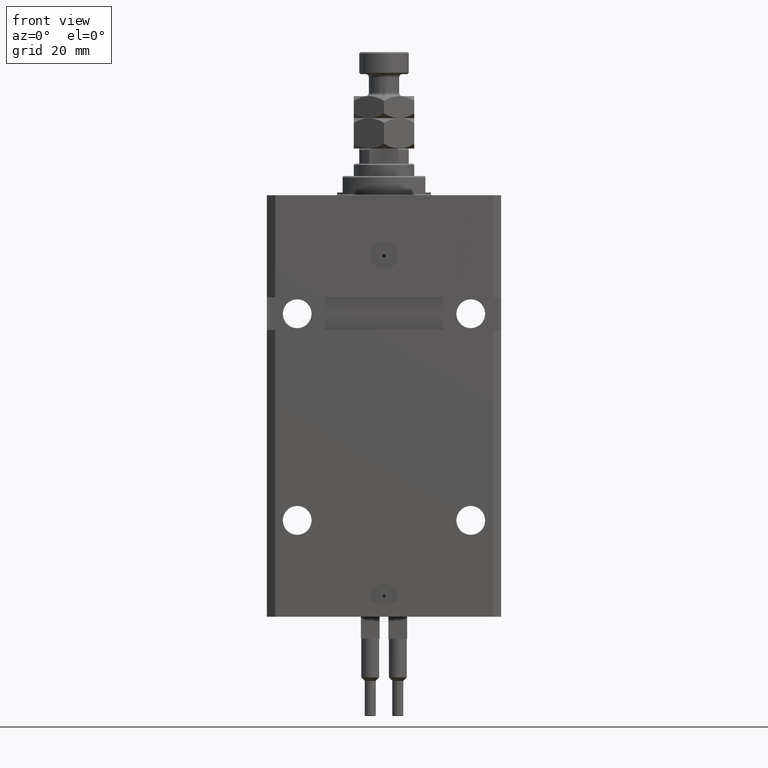
[diagram: clean part render]
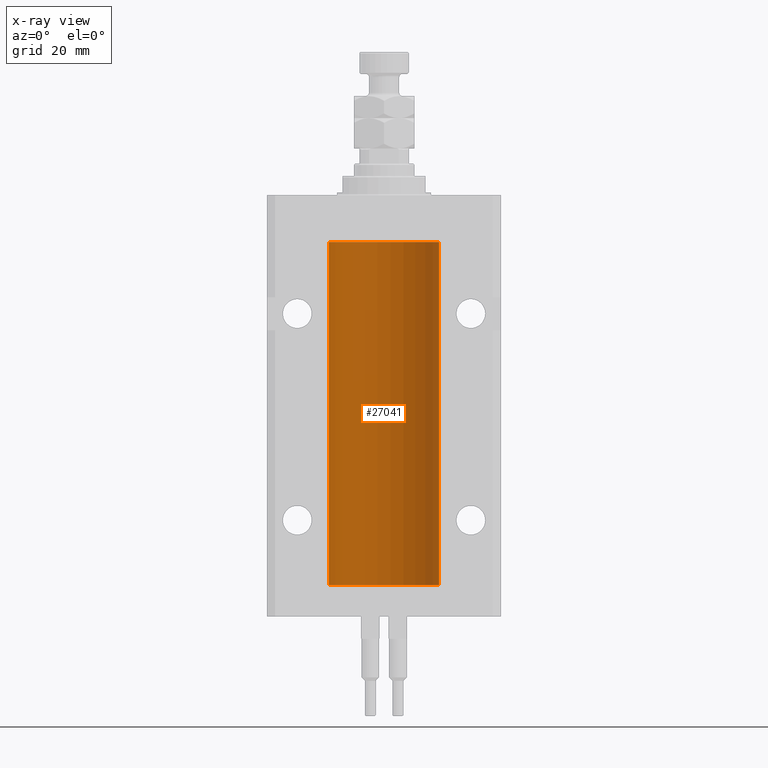
[diagram: x-ray — body ghosted, one internal face saturated and labeled with its STEP entity id]
A machine part, front view, then the same camera in x-ray: the body is ghosted and one INTERNAL B-rep face — a face not visible from any outside direction — is saturated and labeled: STEP entity #27041.
In plain terms, the highlighted cylindrical surface (partial cylindrical patch) has radius 20 mm, axis along (0, 0, 1).
Its self-contained STEP definition (entity closure, byte-faithful):
#698 = FACE_OUTER_BOUND ( 'NONE', #46947, .T. ) ;
#1222 = CARTESIAN_POINT ( 'NONE',  ( -19.99253506710755346, 0.5587120480776690545, -139.3251162083025463 ) ) ;
#1735 = LINE ( 'NONE', #17294, #22762 ) ;
#3178 = CIRCLE ( 'NONE', #18660, 20.00000000000000000 ) ;
#4129 = ORIENTED_EDGE ( 'NONE', *, *, #21337, .T. ) ;
#4693 = ORIENTED_EDGE ( 'NONE', *, *, #42799, .F. ) ;
#5065 = CARTESIAN_POINT ( 'NONE',  ( -19.99947377218718358, 0.1636439183262808073, -138.3912636400466170 ) ) ;
#5343 = EDGE_CURVE ( 'NONE', #17881, #25268, #3178, .T. ) ;
#5540 = LINE ( 'NONE', #9625, #35638 ) ;
#6046 = VERTEX_POINT ( 'NONE', #25546 ) ;
#6108 = CARTESIAN_POINT ( 'NONE',  ( -19.99999999999999645, 0.08259581631026780002, -23.37500000000000000 ) ) ;
#7365 = ORIENTED_EDGE ( 'NONE', *, *, #39556, .T. ) ;
#7489 = LINE ( 'NONE', #22293, #35195 ) ;
#7972 = DIRECTION ( 'NONE',  ( 1.000000000000000000, 0.000000000000000000, 0.000000000000000000 ) ) ;
#8637 = CARTESIAN_POINT ( 'NONE',  ( -20.00000000000010303, 3.580159249456421507E-13, -139.6250000000033253 ) ) ;
#8795 = EDGE_CURVE ( 'NONE', #16550, #19135, #45624, .T. ) ;
#9465 = CARTESIAN_POINT ( 'NONE',  ( -19.99253506710754991, 0.5587120480776751608, -24.32511620830248589 ) ) ;
#9625 = CARTESIAN_POINT ( 'NONE',  ( -20.00000000000000000, 2.449293598294706513E-15, -141.5999999999999943 ) ) ;
#9710 = CARTESIAN_POINT ( 'NONE',  ( -20.00000000000000000, -2.867584836844214272E-15, -23.37500000000000000 ) ) ;
#12471 = CARTESIAN_POINT ( 'NONE',  ( -19.99766197842594195, 0.3150331617867615508, -138.4540207010250299 ) ) ;
#12880 = CARTESIAN_POINT ( 'NONE',  ( -20.00000000000000000, -2.867584836844214272E-15, -23.37500000000000000 ) ) ;
#12903 = AXIS2_PLACEMENT_3D ( 'NONE', #27490, #24146, #47720 ) ;
#13304 = CARTESIAN_POINT ( 'NONE',  ( -20.00000000000010303, 3.580159282543646009E-13, -24.62500000000332889 ) ) ;
#16037 = CARTESIAN_POINT ( 'NONE',  ( -19.99023018003212471, 0.6250578794725458742, -139.1628480970496753 ) ) ;
#16283 = DIRECTION ( 'NONE',  ( -0.000000000000000000, -0.000000000000000000, 1.000000000000000000 ) ) ;
#16550 = VERTEX_POINT ( 'NONE', #12880 ) ;
#17117 = CARTESIAN_POINT ( 'NONE',  ( -19.99256581701871482, 0.5573276956902001311, -23.67348565770948809 ) ) ;
#17294 = CARTESIAN_POINT ( 'NONE',  ( -20.00000000000000000, 2.449293598294706513E-15, -141.5999999999999943 ) ) ;
#17723 = VECTOR ( 'NONE', #37590, 1000.000000000000000 ) ;
#17881 = VERTEX_POINT ( 'NONE', #35825 ) ;
#18632 = EDGE_CURVE ( 'NONE', #26094, #19135, #5540, .T. ) ;
#18660 = AXIS2_PLACEMENT_3D ( 'NONE', #26890, #46873, #7972 ) ;
#18710 = DIRECTION ( 'NONE',  ( -0.000000000000000000, -0.000000000000000000, 1.000000000000000000 ) ) ;
#18732 = B_SPLINE_CURVE_WITH_KNOTS ( 'NONE', 3,
 ( #35471, #39827, #5065, #12471, #20634, #28059, #36241, #16037, #1222, #47274, #43437, #8637 ),
 .UNSPECIFIED., .F., .F.,
 ( 4, 2, 2, 2, 2, 4 ),
 ( 5.247116368830962784E-19, 0.0002442693137305545852, 0.0004885386274611086283, 0.0009770772549221576255, 0.001465615882383206840, 0.001954154509844256270 ),
 .UNSPECIFIED. ) ;
#19135 = VERTEX_POINT ( 'NONE', #32450 ) ;
#20634 = CARTESIAN_POINT ( 'NONE',  ( -19.99638934703457238, 0.3843678041337506568, -138.5004636297809952 ) ) ;
#20811 = ORIENTED_EDGE ( 'NONE', *, *, #46867, .F. ) ;
#21200 = CARTESIAN_POINT ( 'NONE',  ( -19.99023018003212471, 0.6250578794725500931, -24.16284809704970371 ) ) ;
#21337 = EDGE_CURVE ( 'NONE', #23441, #17881, #49623, .T. ) ;
#21683 = CARTESIAN_POINT ( 'NONE',  ( -19.99766197842594906, 0.3150331617867667688, -23.45402070102505476 ) ) ;
#22293 = CARTESIAN_POINT ( 'NONE',  ( -20.00000000000000000, 2.449293598294706513E-15, -141.5999999999999943 ) ) ;
#22762 = VECTOR ( 'NONE', #28571, 1000.000000000000000 ) ;
#23329 = VERTEX_POINT ( 'NONE', #25929 ) ;
#23441 = VERTEX_POINT ( 'NONE', #38977 ) ;
#24146 = DIRECTION ( 'NONE',  ( 0.000000000000000000, 0.000000000000000000, 1.000000000000000000 ) ) ;
#25268 = VERTEX_POINT ( 'NONE', #36090 ) ;
#25546 = CARTESIAN_POINT ( 'NONE',  ( -20.00000000000000000, 2.449293598294706513E-15, -141.5999999999999943 ) ) ;
#25929 = CARTESIAN_POINT ( 'NONE',  ( -20.00000000000010303, 3.580159249456421507E-13, -139.6250000000033253 ) ) ;
#26094 = VERTEX_POINT ( 'NONE', #28814 ) ;
#26890 = CARTESIAN_POINT ( 'NONE',  ( 0.000000000000000000, 0.000000000000000000, -17.00000000000000000 ) ) ;
#27041 = ADVANCED_FACE ( 'NONE', ( #698 ), #35972, .F. ) ;
#27490 = CARTESIAN_POINT ( 'NONE',  ( 0.000000000000000000, 0.000000000000000000, -141.5999999999999943 ) ) ;
#28059 = CARTESIAN_POINT ( 'NONE',  ( -19.99256581701871482, 0.5573276956901845880, -138.6734856577095059 ) ) ;
#28571 = DIRECTION ( 'NONE',  ( -0.000000000000000000, -0.000000000000000000, 1.000000000000000000 ) ) ;
#28637 = ORIENTED_EDGE ( 'NONE', *, *, #39743, .F. ) ;
#28814 = CARTESIAN_POINT ( 'NONE',  ( -20.00000000000000000, -1.756252550797319649E-14, -138.3749999999999716 ) ) ;
#29294 = DIRECTION ( 'NONE',  ( -0.000000000000000000, -0.000000000000000000, 1.000000000000000000 ) ) ;
#29632 = ORIENTED_EDGE ( 'NONE', *, *, #8795, .T. ) ;
#31316 = ORIENTED_EDGE ( 'NONE', *, *, #18632, .F. ) ;
#31655 = CIRCLE ( 'NONE', #12903, 20.00000000000000000 ) ;
#31900 = DIRECTION ( 'NONE',  ( 1.000000000000000000, 0.000000000000000000, 0.000000000000000000 ) ) ;
#32450 = CARTESIAN_POINT ( 'NONE',  ( -20.00000000000010303, 3.580159282543646009E-13, -24.62500000000332889 ) ) ;
#35195 = VECTOR ( 'NONE', #18710, 1000.000000000000000 ) ;
#35471 = CARTESIAN_POINT ( 'NONE',  ( -20.00000000000000000, -1.756252550797319649E-14, -138.3749999999999716 ) ) ;
#35638 = VECTOR ( 'NONE', #29294, 1000.000000000000000 ) ;
#35825 = CARTESIAN_POINT ( 'NONE',  ( 20.00000000000000000, 0.000000000000000000, -17.00000000000000000 ) ) ;
#35972 = CYLINDRICAL_SURFACE ( 'NONE', #42359, 20.00000000000000000 ) ;
#36090 = CARTESIAN_POINT ( 'NONE',  ( -20.00000000000000000, 2.449293598294706513E-15, -17.00000000000000000 ) ) ;
#36241 = CARTESIAN_POINT ( 'NONE',  ( -19.99023380173166231, 0.6249420416828387337, -138.8367079305639606 ) ) ;
#37301 = CARTESIAN_POINT ( 'NONE',  ( -19.99023380173166231, 0.6249420416828462832, -23.83670793056396064 ) ) ;
#37590 = DIRECTION ( 'NONE',  ( -0.000000000000000000, -0.000000000000000000, 1.000000000000000000 ) ) ;
#38977 = CARTESIAN_POINT ( 'NONE',  ( 20.00000000000000000, 0.000000000000000000, -141.5999999999999943 ) ) ;
#39556 = EDGE_CURVE ( 'NONE', #26094, #23329, #18732, .T. ) ;
#39569 = CARTESIAN_POINT ( 'NONE',  ( 0.000000000000000000, 0.000000000000000000, -141.5999999999999943 ) ) ;
#39743 = EDGE_CURVE ( 'NONE', #23441, #6046, #31655, .T. ) ;
#39827 = CARTESIAN_POINT ( 'NONE',  ( -20.00000000000000000, 0.08259581631025542103, -138.3749999999999716 ) ) ;
#42359 = AXIS2_PLACEMENT_3D ( 'NONE', #39569, #16283, #31900 ) ;
#42799 = EDGE_CURVE ( 'NONE', #6046, #23329, #1735, .T. ) ;
#43437 = CARTESIAN_POINT ( 'NONE',  ( -19.99999999999999645, 0.1631688615953307553, -139.6249999999998010 ) ) ;
#45249 = CARTESIAN_POINT ( 'NONE',  ( -19.99769349528941120, 0.3253804398728645242, -24.55855820727680339 ) ) ;
#45492 = CARTESIAN_POINT ( 'NONE',  ( -20.00000000000000000, 0.1631688615953320320, -24.62499999999985434 ) ) ;
#45624 = B_SPLINE_CURVE_WITH_KNOTS ( 'NONE', 3,
 ( #9710, #6108, #49092, #21683, #48593, #17117, #37301, #21200, #9465, #45249, #45492, #13304 ),
 .UNSPECIFIED., .F., .F.,
 ( 4, 2, 2, 2, 2, 4 ),
 ( 5.848927291235706941E-19, 0.0002442693137305304075, 0.0004885386274610601645, 0.0009770772549221123059, 0.001465615882383164339, 0.001954154509844215938 ),
 .UNSPECIFIED. ) ;
#46293 = CARTESIAN_POINT ( 'NONE',  ( 20.00000000000000000, 0.000000000000000000, -141.5999999999999943 ) ) ;
#46867 = EDGE_CURVE ( 'NONE', #16550, #25268, #7489, .T. ) ;
#46873 = DIRECTION ( 'NONE',  ( 0.000000000000000000, 0.000000000000000000, 1.000000000000000000 ) ) ;
#46947 = EDGE_LOOP ( 'NONE', ( #4693, #28637, #4129, #48684, #20811, #29632, #31316, #7365 ) ) ;
#47274 = CARTESIAN_POINT ( 'NONE',  ( -19.99769349528941120, 0.3253804398728610270, -139.5585582072767750 ) ) ;
#47720 = DIRECTION ( 'NONE',  ( 1.000000000000000000, 0.000000000000000000, 0.000000000000000000 ) ) ;
#48593 = CARTESIAN_POINT ( 'NONE',  ( -19.99638934703457593, 0.3843678041337688644, -23.50046362978100944 ) ) ;
#48684 = ORIENTED_EDGE ( 'NONE', *, *, #5343, .T. ) ;
#49092 = CARTESIAN_POINT ( 'NONE',  ( -19.99947377218718714, 0.1636439183262877461, -23.39126364004656011 ) ) ;
#49623 = LINE ( 'NONE', #46293, #17723 ) ;